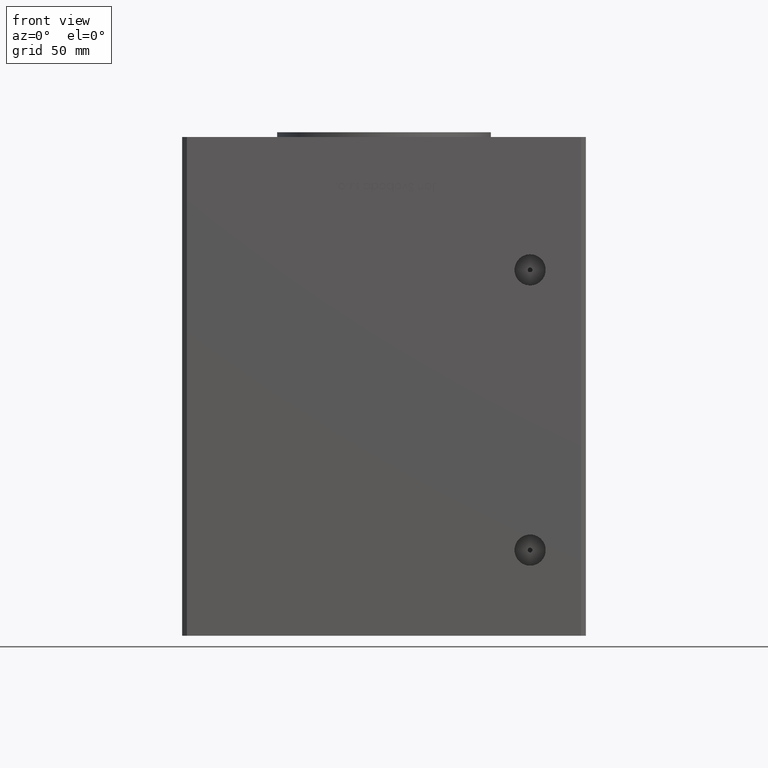
[diagram: clean part render]
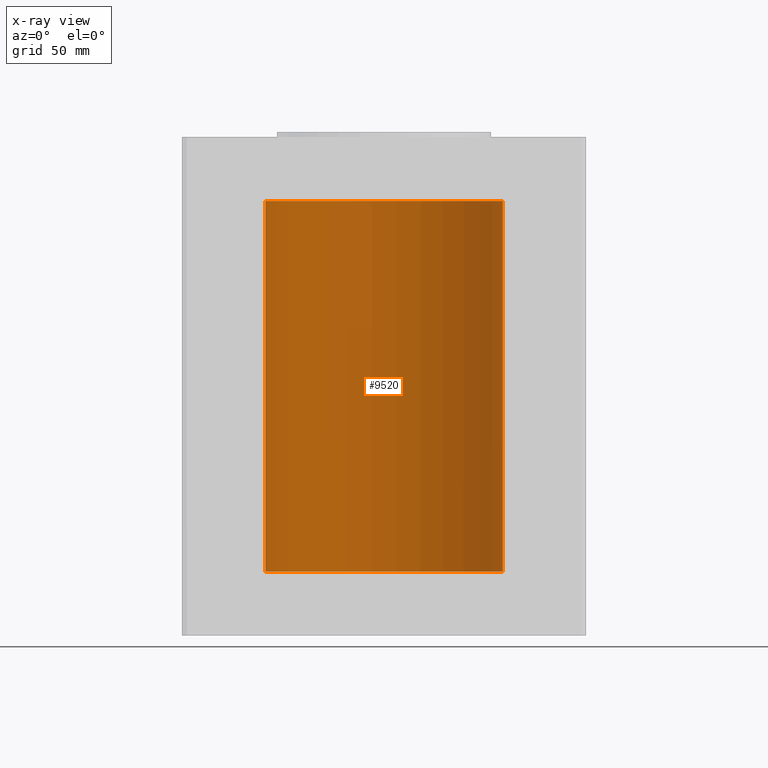
[diagram: x-ray — body ghosted, one internal face saturated and labeled with its STEP entity id]
A machine part, front view, then the same camera in x-ray: the body is ghosted and one INTERNAL B-rep face — a face not visible from any outside direction — is saturated and labeled: STEP entity #9520.
In plain terms, the highlighted cylindrical surface (partial cylindrical patch) has radius 50 mm, axis along (-0, -0, -1).
Its self-contained STEP definition (entity closure, byte-faithful):
#2911 = AXIS2_PLACEMENT_3D ( 'NONE', #34747, #6295, #31059 ) ;
#2997 = EDGE_LOOP ( 'NONE', ( #32645, #29066, #48245, #22787 ) ) ;
#4967 = DIRECTION ( 'NONE',  ( -0.000000000000000000, 0.000000000000000000, 1.000000000000000000 ) ) ;
#6295 = DIRECTION ( 'NONE',  ( -0.000000000000000000, 0.000000000000000000, 1.000000000000000000 ) ) ;
#8265 = DIRECTION ( 'NONE',  ( -0.000000000000000000, -0.000000000000000000, -1.000000000000000000 ) ) ;
#9520 = ADVANCED_FACE ( 'NONE', ( #18656 ), #50806, .F. ) ;
#13755 = VERTEX_POINT ( 'NONE', #19967 ) ;
#16692 = CARTESIAN_POINT ( 'NONE',  ( -50.00000000000000000, 0.000000000000000000, 156.0000000000000000 ) ) ;
#16785 = VERTEX_POINT ( 'NONE', #36489 ) ;
#17760 = VECTOR ( 'NONE', #8265, 1000.000000000000000 ) ;
#18656 = FACE_OUTER_BOUND ( 'NONE', #2997, .T. ) ;
#19967 = CARTESIAN_POINT ( 'NONE',  ( -50.00000000000000000, 0.000000000000000000, 0.000000000000000000 ) ) ;
#20648 = CARTESIAN_POINT ( 'NONE',  ( 50.00000000000000000, 6.123233995736766085E-15, 156.0000000000000000 ) ) ;
#21418 = EDGE_CURVE ( 'NONE', #16785, #13755, #41460, .T. ) ;
#22787 = ORIENTED_EDGE ( 'NONE', *, *, #51808, .F. ) ;
#24476 = CARTESIAN_POINT ( 'NONE',  ( 0.000000000000000000, 0.000000000000000000, 0.000000000000000000 ) ) ;
#25802 = DIRECTION ( 'NONE',  ( -1.000000000000000000, 0.000000000000000000, 0.000000000000000000 ) ) ;
#29066 = ORIENTED_EDGE ( 'NONE', *, *, #50737, .T. ) ;
#31059 = DIRECTION ( 'NONE',  ( 1.000000000000000000, 0.000000000000000000, 0.000000000000000000 ) ) ;
#32645 = ORIENTED_EDGE ( 'NONE', *, *, #33087, .F. ) ;
#33087 = EDGE_CURVE ( 'NONE', #48790, #39536, #44890, .T. ) ;
#34066 = CIRCLE ( 'NONE', #2911, 50.00000000000000000 ) ;
#34747 = CARTESIAN_POINT ( 'NONE',  ( 0.000000000000000000, 0.000000000000000000, 156.0000000000000000 ) ) ;
#36489 = CARTESIAN_POINT ( 'NONE',  ( -50.00000000000000000, 0.000000000000000000, 156.0000000000000000 ) ) ;
#38216 = AXIS2_PLACEMENT_3D ( 'NONE', #42899, #46852, #25802 ) ;
#39536 = VERTEX_POINT ( 'NONE', #44217 ) ;
#40539 = DIRECTION ( 'NONE',  ( 1.000000000000000000, 0.000000000000000000, 0.000000000000000000 ) ) ;
#41460 = LINE ( 'NONE', #16692, #43516 ) ;
#42899 = CARTESIAN_POINT ( 'NONE',  ( 0.000000000000000000, 0.000000000000000000, 156.0000000000000000 ) ) ;
#43516 = VECTOR ( 'NONE', #48846, 1000.000000000000000 ) ;
#44217 = CARTESIAN_POINT ( 'NONE',  ( 50.00000000000000000, 6.123233995736766085E-15, 0.000000000000000000 ) ) ;
#44890 = LINE ( 'NONE', #20648, #17760 ) ;
#44946 = AXIS2_PLACEMENT_3D ( 'NONE', #24476, #4967, #40539 ) ;
#46852 = DIRECTION ( 'NONE',  ( -0.000000000000000000, -0.000000000000000000, -1.000000000000000000 ) ) ;
#47445 = CIRCLE ( 'NONE', #44946, 50.00000000000000000 ) ;
#48245 = ORIENTED_EDGE ( 'NONE', *, *, #21418, .T. ) ;
#48790 = VERTEX_POINT ( 'NONE', #51582 ) ;
#48846 = DIRECTION ( 'NONE',  ( -0.000000000000000000, -0.000000000000000000, -1.000000000000000000 ) ) ;
#50737 = EDGE_CURVE ( 'NONE', #48790, #16785, #34066, .T. ) ;
#50806 = CYLINDRICAL_SURFACE ( 'NONE', #38216, 50.00000000000000000 ) ;
#51582 = CARTESIAN_POINT ( 'NONE',  ( 50.00000000000000000, 6.123233995736766085E-15, 156.0000000000000000 ) ) ;
#51808 = EDGE_CURVE ( 'NONE', #39536, #13755, #47445, .T. ) ;